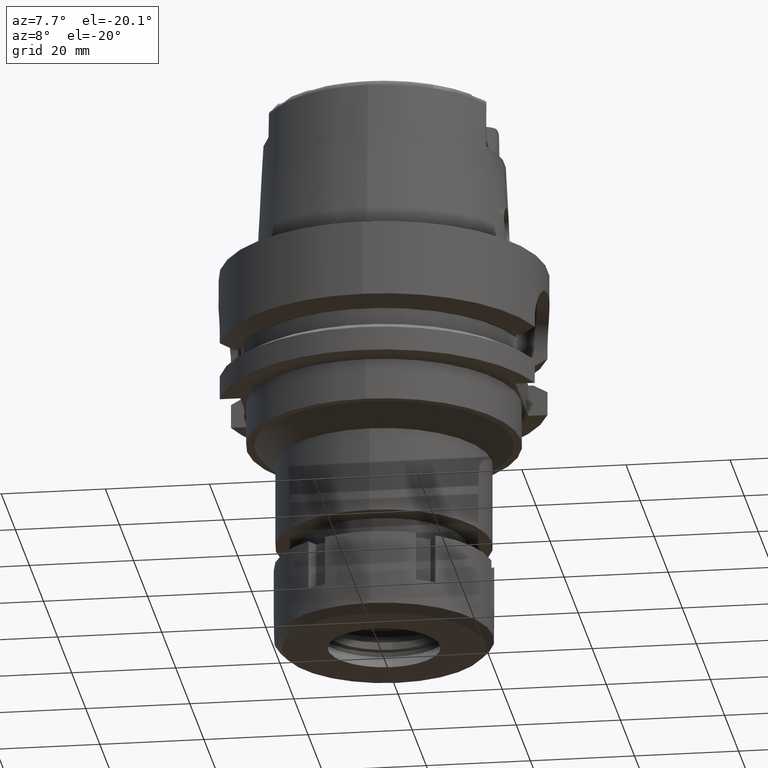
[diagram: clean part render]
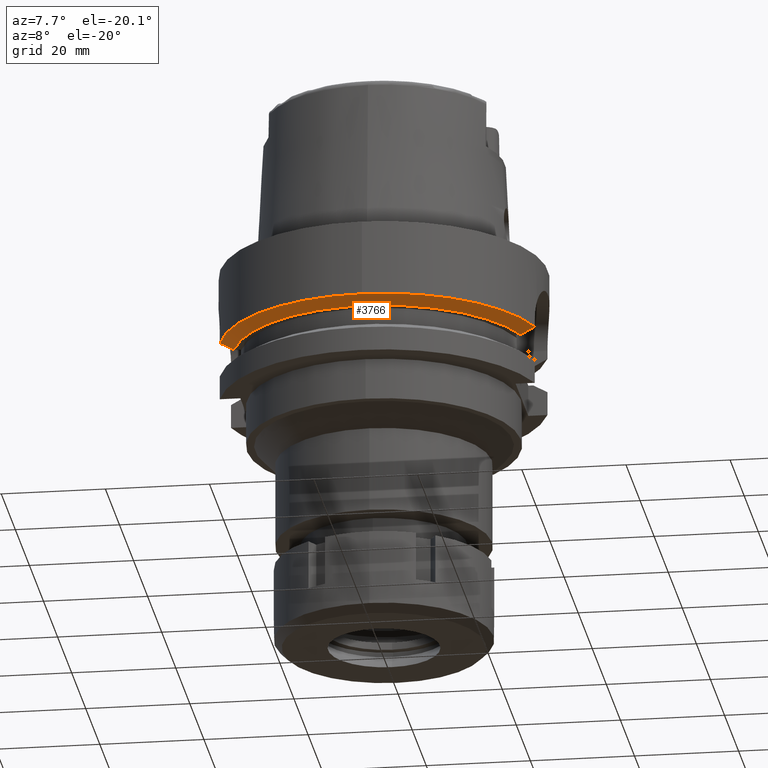
[diagram: same view with one face highlighted and labeled with its STEP entity id]
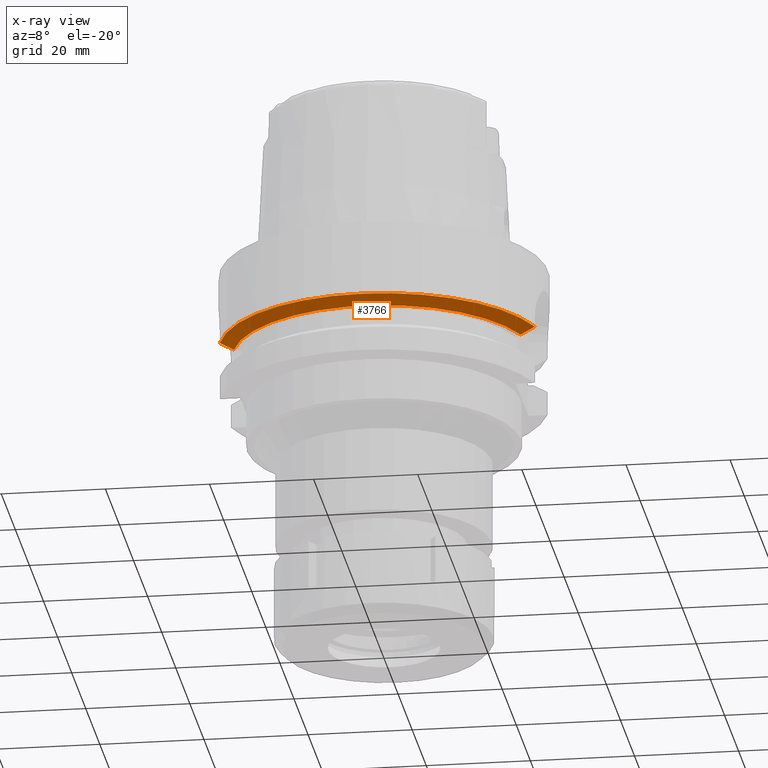
[diagram: x-ray of the same camera — body ghosted, the highlighted face saturated]
A machine part, auxiliary view. The second image highlights one B-rep face of the part: STEP entity #3766.
The next image is the same camera in x-ray: the body ghosted, the highlighted face saturated — about 0% of this face is hidden behind the body in this view.
In plain terms, the highlighted conical surface has half-angle 60 deg.
Its self-contained STEP definition (entity closure, byte-faithful):
#140 = CARTESIAN_POINT ( 'NONE',  ( 28.35121603340000007, -9.000000322311999312, -15.63573148022000225 ) ) ;
#165 = B_SPLINE_CURVE_WITH_KNOTS ( 'NONE', 3,
 ( #2328, #2799, #344, #6178, #3287, #1851 ),
 .UNSPECIFIED., .F., .F.,
 ( 4, 1, 1, 4 ),
 ( 0.0000000000000000000, 0.3333333333333000081, 0.6666666666667000474, 1.000000000000000000 ),
 .UNSPECIFIED. ) ;
#176 = CARTESIAN_POINT ( 'NONE',  ( 29.87624854351999915, -8.999999850290000936, -14.79439022309999885 ) ) ;
#251 = DIRECTION ( 'NONE',  ( 0.0000000000000000000, -1.000000000000000000, 0.0000000000000000000 ) ) ;
#344 = CARTESIAN_POINT ( 'NONE',  ( -28.65165080112000240, -7.999999997390998985, -15.63446130391999844 ) ) ;
#371 = CONICAL_SURFACE ( 'NONE', #3624, 30.19879763209999979, 1.047197551196400456 ) ;
#573 = VERTEX_POINT ( 'NONE', #1917 ) ;
#824 = CARTESIAN_POINT ( 'NONE',  ( 0.0000000000000000000, 0.0000000000000000000, -14.62250092523999889 ) ) ;
#952 = ORIENTED_EDGE ( 'NONE', *, *, #5538, .F. ) ;
#1201 = DIRECTION ( 'NONE',  ( 0.0000000000000000000, 0.0000000000000000000, 1.000000000000000000 ) ) ;
#1222 = CARTESIAN_POINT ( 'NONE',  ( 0.0000000000000000000, 0.0000000000000000000, -16.12500000000000000 ) ) ;
#1273 = CARTESIAN_POINT ( 'NONE',  ( -27.76816328582000182, -8.000000140629998313, -16.12500000000000000 ) ) ;
#1296 = DIRECTION ( 'NONE',  ( 0.0000000000000000000, 0.0000000000000000000, 1.000000000000000000 ) ) ;
#1324 = DIRECTION ( 'NONE',  ( 0.0000000000000000000, 0.0000000000000000000, 1.000000000000000000 ) ) ;
#1441 = VERTEX_POINT ( 'NONE', #1273 ) ;
#1481 = ORIENTED_EDGE ( 'NONE', *, *, #2379, .F. ) ;
#1582 = CARTESIAN_POINT ( 'NONE',  ( 30.18691774088000201, -8.999999850290000936, -14.62250213268999843 ) ) ;
#1611 = CARTESIAN_POINT ( 'NONE',  ( 27.46036362182999824, -8.999999266558001310, -16.12500000000000000 ) ) ;
#1661 = EDGE_LOOP ( 'NONE', ( #4997, #4142, #3274, #952, #1481 ) ) ;
#1778 = DIRECTION ( 'NONE',  ( 0.0000000000000000000, 1.000000000000000000, 0.0000000000000000000 ) ) ;
#1851 = CARTESIAN_POINT ( 'NONE',  ( -30.46719534905999893, -8.000000472634999582, -14.62249663472000094 ) ) ;
#1906 = AXIS2_PLACEMENT_3D ( 'NONE', #5786, #1324, #3829 ) ;
#1917 = CARTESIAN_POINT ( 'NONE',  ( 0.0000000000000000000, -31.50000000000000000, -14.62250092523999889 ) ) ;
#2053 = CARTESIAN_POINT ( 'NONE',  ( 27.46036362182999824, -8.999999266558001310, -16.12500000000000000 ) ) ;
#2207 = CARTESIAN_POINT ( 'NONE',  ( 30.18691774088000201, -8.999999850290000936, -14.62250213268999843 ) ) ;
#2328 = CARTESIAN_POINT ( 'NONE',  ( -27.76816328582000182, -8.000000140629998313, -16.12500000000000000 ) ) ;
#2379 = EDGE_CURVE ( 'NONE', #2696, #573, #4638, .T. ) ;
#2592 = CIRCLE ( 'NONE', #6127, 28.89759526419000224 ) ;
#2649 = CARTESIAN_POINT ( 'NONE',  ( -30.46719534905999893, -8.000000472634999582, -14.62249663472000094 ) ) ;
#2696 = VERTEX_POINT ( 'NONE', #2649 ) ;
#2799 = CARTESIAN_POINT ( 'NONE',  ( -28.06112175406000020, -8.000000140629998313, -15.96247098211999926 ) ) ;
#3043 = EDGE_CURVE ( 'NONE', #4863, #3539, #3765, .T. ) ;
#3191 = EDGE_CURVE ( 'NONE', #1441, #3539, #2592, .T. ) ;
#3274 = ORIENTED_EDGE ( 'NONE', *, *, #3043, .F. ) ;
#3287 = CARTESIAN_POINT ( 'NONE',  ( -30.16035498389999958, -8.000000472634999582, -14.79384256091999994 ) ) ;
#3539 = VERTEX_POINT ( 'NONE', #2053 ) ;
#3624 = AXIS2_PLACEMENT_3D ( 'NONE', #4555, #5579, #1778 ) ;
#3684 = DIRECTION ( 'NONE',  ( 0.0000000000000000000, -1.000000000000000000, 0.0000000000000000000 ) ) ;
#3765 = B_SPLINE_CURVE_WITH_KNOTS ( 'NONE', 3,
 ( #1582, #176, #4906, #140, #4082, #1611 ),
 .UNSPECIFIED., .F., .F.,
 ( 4, 1, 1, 4 ),
 ( 0.0000000000000000000, 0.3333333333333000081, 0.6666666666667000474, 1.000000000000000000 ),
 .UNSPECIFIED. ) ;
#3766 = ADVANCED_FACE ( 'NONE', ( #6101 ), #371, .T. ) ;
#3775 = CIRCLE ( 'NONE', #6093, 31.50000000000000000 ) ;
#3829 = DIRECTION ( 'NONE',  ( -0.9672125547036138915, -0.2539682539683034701, 0.0000000000000000000 ) ) ;
#4004 = EDGE_CURVE ( 'NONE', #1441, #2696, #165, .T. ) ;
#4082 = CARTESIAN_POINT ( 'NONE',  ( 27.75559574204999791, -8.999999266558001310, -15.96302521640999927 ) ) ;
#4142 = ORIENTED_EDGE ( 'NONE', *, *, #3191, .T. ) ;
#4555 = CARTESIAN_POINT ( 'NONE',  ( 0.0000000000000000000, 0.0000000000000000000, -15.37375046262000033 ) ) ;
#4638 = CIRCLE ( 'NONE', #1906, 31.50000000000000000 ) ;
#4863 = VERTEX_POINT ( 'NONE', #2207 ) ;
#4906 = CARTESIAN_POINT ( 'NONE',  ( 29.26005972586000325, -8.999999972073000620, -15.13488328253000148 ) ) ;
#4997 = ORIENTED_EDGE ( 'NONE', *, *, #4004, .F. ) ;
#5538 = EDGE_CURVE ( 'NONE', #573, #4863, #3775, .T. ) ;
#5579 = DIRECTION ( 'NONE',  ( 0.0000000000000000000, 0.0000000000000000000, 1.000000000000000000 ) ) ;
#5786 = CARTESIAN_POINT ( 'NONE',  ( 0.0000000000000000000, 0.0000000000000000000, -14.62250092523999889 ) ) ;
#6093 = AXIS2_PLACEMENT_3D ( 'NONE', #824, #1201, #251 ) ;
#6101 = FACE_OUTER_BOUND ( 'NONE', #1661, .T. ) ;
#6127 = AXIS2_PLACEMENT_3D ( 'NONE', #1222, #1296, #3684 ) ;
#6178 = CARTESIAN_POINT ( 'NONE',  ( -29.55132034505999883, -7.999999798188000888, -15.13361279891000066 ) ) ;